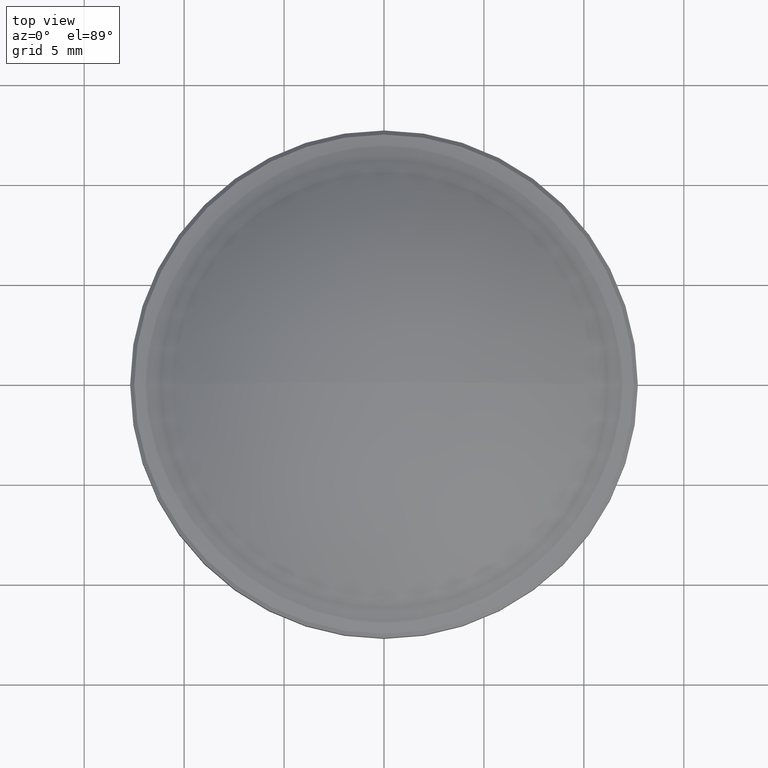
[diagram: clean part render]
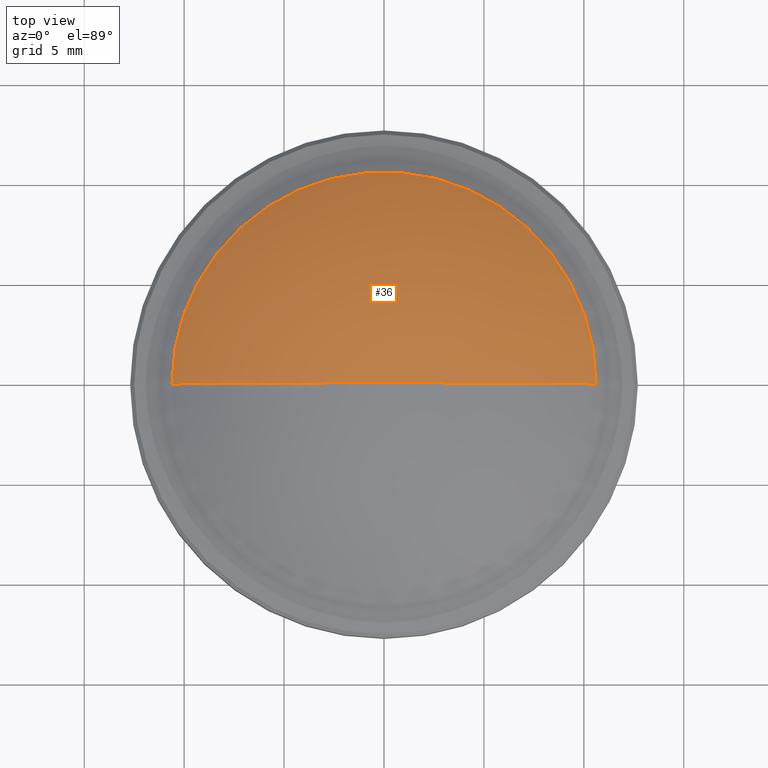
[diagram: same view with one face highlighted and labeled with its STEP entity id]
A machine part, top view. The second image highlights one B-rep face of the part: STEP entity #36.
In plain terms, the highlighted spherical surface has radius 18.252 mm.
Its self-contained STEP definition (entity closure, byte-faithful):
#14 = VERTEX_POINT ( 'NONE', #114 ) ;
#17 = DIRECTION ( 'NONE',  ( -1.224646799147353207E-16, -0.000000000000000000, -1.000000000000000000 ) ) ;
#20 = CARTESIAN_POINT ( 'NONE',  ( -10.60895851618369967, 0.000000000000000000, 3.600121168435617580 ) ) ;
#25 = AXIS2_PLACEMENT_3D ( 'NONE', #84, #179, #301 ) ;
#36 = ADVANCED_FACE ( 'NONE', ( #88 ), #279, .T. ) ;
#37 = EDGE_LOOP ( 'NONE', ( #156, #239, #59 ) ) ;
#45 = EDGE_CURVE ( 'NONE', #14, #174, #127, .T. ) ;
#59 = ORIENTED_EDGE ( 'NONE', *, *, #106, .F. ) ;
#71 = EDGE_CURVE ( 'NONE', #14, #181, #177, .T. ) ;
#84 = CARTESIAN_POINT ( 'NONE',  ( 0.000000000000000000, 0.000000000000000000, -11.25199999999999889 ) ) ;
#88 = FACE_OUTER_BOUND ( 'NONE', #37, .T. ) ;
#106 = EDGE_CURVE ( 'NONE', #181, #174, #107, .T. ) ;
#107 = CIRCLE ( 'NONE', #315, 10.60895851618369967 ) ;
#113 = DIRECTION ( 'NONE',  ( 0.000000000000000000, -1.000000000000000000, 0.000000000000000000 ) ) ;
#114 = CARTESIAN_POINT ( 'NONE',  ( 1.117612668901874404E-15, 0.000000000000000000, 6.999999999999999112 ) ) ;
#127 = CIRCLE ( 'NONE', #25, 18.25199999999999889 ) ;
#156 = ORIENTED_EDGE ( 'NONE', *, *, #71, .F. ) ;
#160 = CARTESIAN_POINT ( 'NONE',  ( 0.000000000000000000, 0.000000000000000000, -11.25199999999999889 ) ) ;
#162 = DIRECTION ( 'NONE',  ( 0.000000000000000000, 0.000000000000000000, -1.000000000000000000 ) ) ;
#166 = CARTESIAN_POINT ( 'NONE',  ( 8.206617439655612360E-17, 0.000000000000000000, 3.600121168435616248 ) ) ;
#167 = CARTESIAN_POINT ( 'NONE',  ( 10.60895851618369967, 1.414654521538122764E-15, 3.600121168435614916 ) ) ;
#174 = VERTEX_POINT ( 'NONE', #167 ) ;
#177 = CIRCLE ( 'NONE', #217, 18.25199999999999889 ) ;
#179 = DIRECTION ( 'NONE',  ( -1.224646799147353207E-16, 1.000000000000000000, 1.499759782661857608E-32 ) ) ;
#181 = VERTEX_POINT ( 'NONE', #20 ) ;
#200 = CARTESIAN_POINT ( 'NONE',  ( 0.000000000000000000, 0.000000000000000000, -11.25199999999999889 ) ) ;
#213 = DIRECTION ( 'NONE',  ( -1.000000000000000000, 0.000000000000000000, 1.226362234330445841E-16 ) ) ;
#217 = AXIS2_PLACEMENT_3D ( 'NONE', #160, #113, #162 ) ;
#239 = ORIENTED_EDGE ( 'NONE', *, *, #45, .T. ) ;
#272 = DIRECTION ( 'NONE',  ( 0.000000000000000000, 1.000000000000000000, -0.000000000000000000 ) ) ;
#279 = SPHERICAL_SURFACE ( 'NONE', #303, 18.25199999999999889 ) ;
#300 = DIRECTION ( 'NONE',  ( -1.000000000000000000, 0.000000000000000000, 9.504292548634709852E-17 ) ) ;
#301 = DIRECTION ( 'NONE',  ( -1.000000000000000000, -1.224646799147353207E-16, 0.000000000000000000 ) ) ;
#303 = AXIS2_PLACEMENT_3D ( 'NONE', #200, #272, #300 ) ;
#315 = AXIS2_PLACEMENT_3D ( 'NONE', #166, #17, #213 ) ;